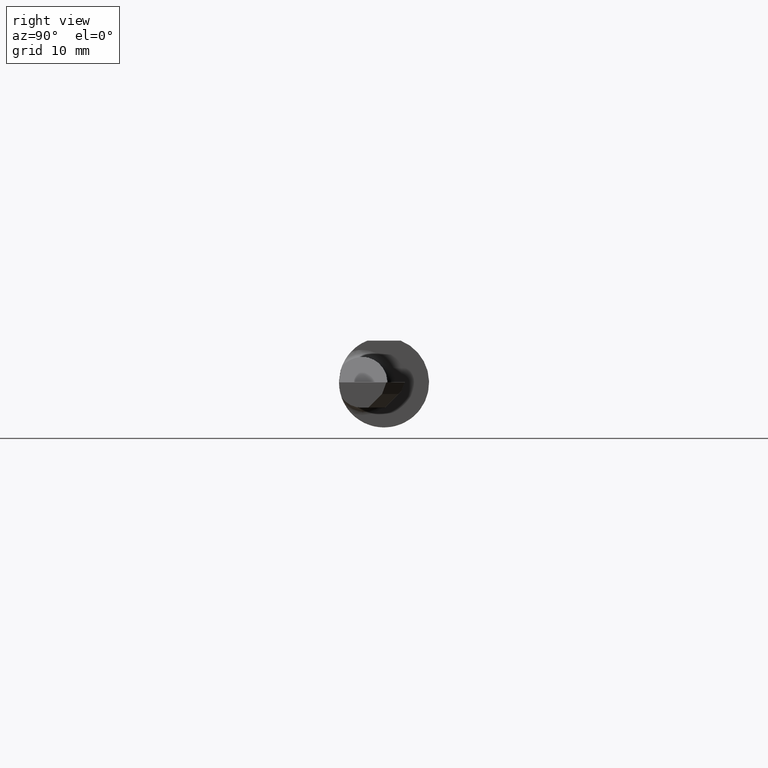
[diagram: clean part render]
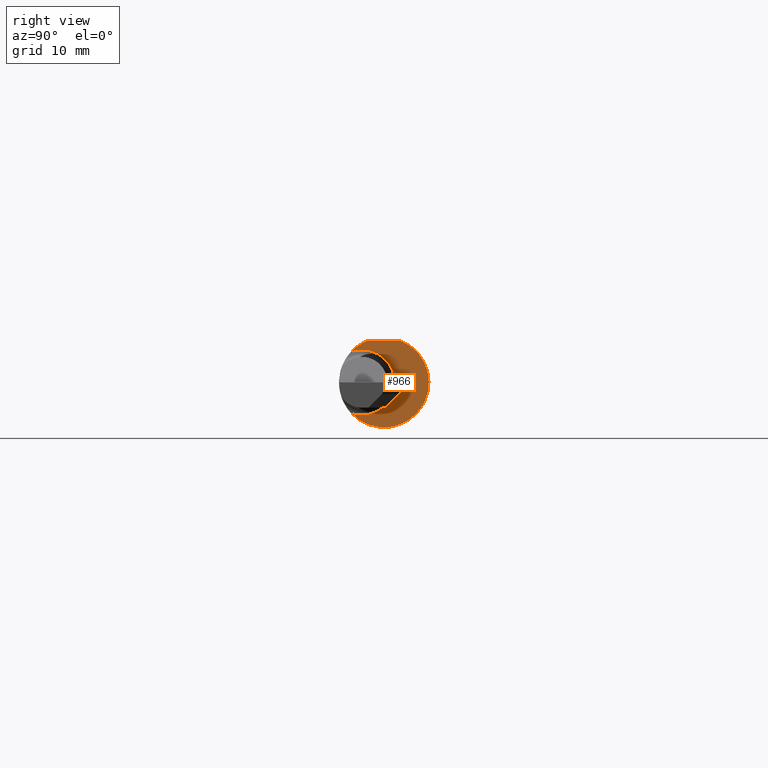
[diagram: same view with one face highlighted and labeled with its STEP entity id]
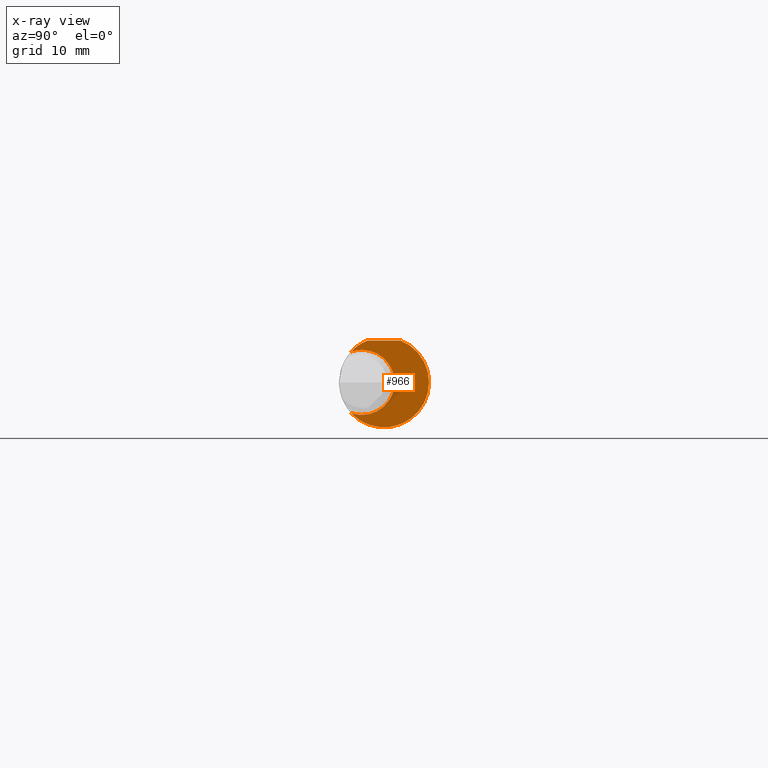
[diagram: x-ray of the same camera — body ghosted, the highlighted face saturated]
A machine part, right view. The second image highlights one B-rep face of the part: STEP entity #966.
The next image is the same camera in x-ray: the body ghosted, the highlighted face saturated — about 5% of this face is hidden behind the body in this view.
In plain terms, the highlighted planar face has unit normal (1, 0, 0).
Its self-contained STEP definition (entity closure, byte-faithful):
#3 = AXIS2_PLACEMENT_3D ( 'NONE', #340, #856, #488 ) ;
#6 = CIRCLE ( 'NONE', #848, 0.1560999999999999888 ) ;
#9 = CARTESIAN_POINT ( 'NONE',  ( 1.170000000000000151, 0.000000000000000000, 0.000000000000000000 ) ) ;
#39 = AXIS2_PLACEMENT_3D ( 'NONE', #486, #113, #798 ) ;
#42 = DIRECTION ( 'NONE',  ( -1.000000000000000000, -0.000000000000000000, -0.000000000000000000 ) ) ;
#51 = AXIS2_PLACEMENT_3D ( 'NONE', #647, #110, #870 ) ;
#57 = ORIENTED_EDGE ( 'NONE', *, *, #419, .T. ) ;
#100 = EDGE_CURVE ( 'NONE', #546, #796, #462, .T. ) ;
#104 = CIRCLE ( 'NONE', #51, 0.1130000000000000032 ) ;
#110 = DIRECTION ( 'NONE',  ( -1.000000000000000000, -0.000000000000000000, -0.000000000000000000 ) ) ;
#113 = DIRECTION ( 'NONE',  ( -1.000000000000000000, -0.000000000000000000, -0.000000000000000000 ) ) ;
#115 = VERTEX_POINT ( 'NONE', #795 ) ;
#128 = CARTESIAN_POINT ( 'NONE',  ( 1.170000000000000151, -0.1142537450722733300, 0.1063639588251582974 ) ) ;
#161 = DIRECTION ( 'NONE',  ( 1.000000000000000000, 0.000000000000000000, 0.000000000000000000 ) ) ;
#185 = CARTESIAN_POINT ( 'NONE',  ( 1.170000000000000151, -0.07609999999999990383, 0.000000000000000000 ) ) ;
#193 = CIRCLE ( 'NONE', #39, 0.1130000000000000032 ) ;
#197 = EDGE_CURVE ( 'NONE', #796, #115, #580, .T. ) ;
#206 = AXIS2_PLACEMENT_3D ( 'NONE', #185, #42, #427 ) ;
#210 = PLANE ( 'NONE',  #587 ) ;
#223 = CARTESIAN_POINT ( 'NONE',  ( 1.170000000000000151, -0.07609999999999990383, -0.1130000000000000032 ) ) ;
#231 = ORIENTED_EDGE ( 'NONE', *, *, #397, .T. ) ;
#275 = VECTOR ( 'NONE', #725, 39.37007874015748143 ) ;
#292 = CARTESIAN_POINT ( 'NONE',  ( 1.170000000000000151, 0.2119000000000000883, 0.000000000000000000 ) ) ;
#298 = ORIENTED_EDGE ( 'NONE', *, *, #773, .T. ) ;
#340 = CARTESIAN_POINT ( 'NONE',  ( 1.170000000000000151, 0.000000000000000000, 0.000000000000000000 ) ) ;
#345 = ORIENTED_EDGE ( 'NONE', *, *, #100, .T. ) ;
#357 = CIRCLE ( 'NONE', #206, 0.1130000000000000032 ) ;
#397 = EDGE_CURVE ( 'NONE', #618, #546, #357, .T. ) ;
#402 = CARTESIAN_POINT ( 'NONE',  ( 1.170000000000000151, 0.05756040305626781289, 0.1450999999999999512 ) ) ;
#419 = EDGE_CURVE ( 'NONE', #610, #977, #193, .T. ) ;
#427 = DIRECTION ( 'NONE',  ( 0.000000000000000000, 0.000000000000000000, -1.000000000000000000 ) ) ;
#440 = CARTESIAN_POINT ( 'NONE',  ( 1.170000000000000151, -0.1142537450722733300, -0.1063639588251582974 ) ) ;
#444 = EDGE_CURVE ( 'NONE', #977, #618, #104, .T. ) ;
#462 = CIRCLE ( 'NONE', #3, 0.1560999999999999888 ) ;
#486 = CARTESIAN_POINT ( 'NONE',  ( 1.170000000000000151, -0.07609999999999990383, 0.000000000000000000 ) ) ;
#488 = DIRECTION ( 'NONE',  ( 0.000000000000000000, 0.000000000000000000, -1.000000000000000000 ) ) ;
#521 = ORIENTED_EDGE ( 'NONE', *, *, #197, .T. ) ;
#534 = CARTESIAN_POINT ( 'NONE',  ( 1.170000000000000151, -0.07609999999999988995, 0.1130000000000000032 ) ) ;
#546 = VERTEX_POINT ( 'NONE', #440 ) ;
#580 = LINE ( 'NONE', #880, #275 ) ;
#587 = AXIS2_PLACEMENT_3D ( 'NONE', #292, #589, #894 ) ;
#589 = DIRECTION ( 'NONE',  ( 1.000000000000000000, 0.000000000000000000, 0.000000000000000000 ) ) ;
#610 = VERTEX_POINT ( 'NONE', #128 ) ;
#618 = VERTEX_POINT ( 'NONE', #223 ) ;
#630 = DIRECTION ( 'NONE',  ( 0.000000000000000000, 0.000000000000000000, -1.000000000000000000 ) ) ;
#647 = CARTESIAN_POINT ( 'NONE',  ( 1.170000000000000151, -0.07609999999999990383, 0.000000000000000000 ) ) ;
#676 = FACE_OUTER_BOUND ( 'NONE', #917, .T. ) ;
#725 = DIRECTION ( 'NONE',  ( 0.000000000000000000, -1.000000000000000000, 0.000000000000000000 ) ) ;
#773 = EDGE_CURVE ( 'NONE', #115, #610, #6, .T. ) ;
#795 = CARTESIAN_POINT ( 'NONE',  ( 1.170000000000000151, -0.05756040305626783371, 0.1450999999999999512 ) ) ;
#796 = VERTEX_POINT ( 'NONE', #402 ) ;
#798 = DIRECTION ( 'NONE',  ( 0.000000000000000000, 0.000000000000000000, -1.000000000000000000 ) ) ;
#848 = AXIS2_PLACEMENT_3D ( 'NONE', #9, #161, #630 ) ;
#856 = DIRECTION ( 'NONE',  ( 1.000000000000000000, 0.000000000000000000, 0.000000000000000000 ) ) ;
#870 = DIRECTION ( 'NONE',  ( 0.000000000000000000, 0.000000000000000000, -1.000000000000000000 ) ) ;
#880 = CARTESIAN_POINT ( 'NONE',  ( 1.170000000000000151, 0.1749999999999999889, 0.1450999999999999512 ) ) ;
#894 = DIRECTION ( 'NONE',  ( 0.000000000000000000, 0.000000000000000000, -1.000000000000000000 ) ) ;
#917 = EDGE_LOOP ( 'NONE', ( #298, #57, #918, #231, #345, #521 ) ) ;
#918 = ORIENTED_EDGE ( 'NONE', *, *, #444, .T. ) ;
#966 = ADVANCED_FACE ( 'NONE', ( #676 ), #210, .T. ) ;
#977 = VERTEX_POINT ( 'NONE', #534 ) ;